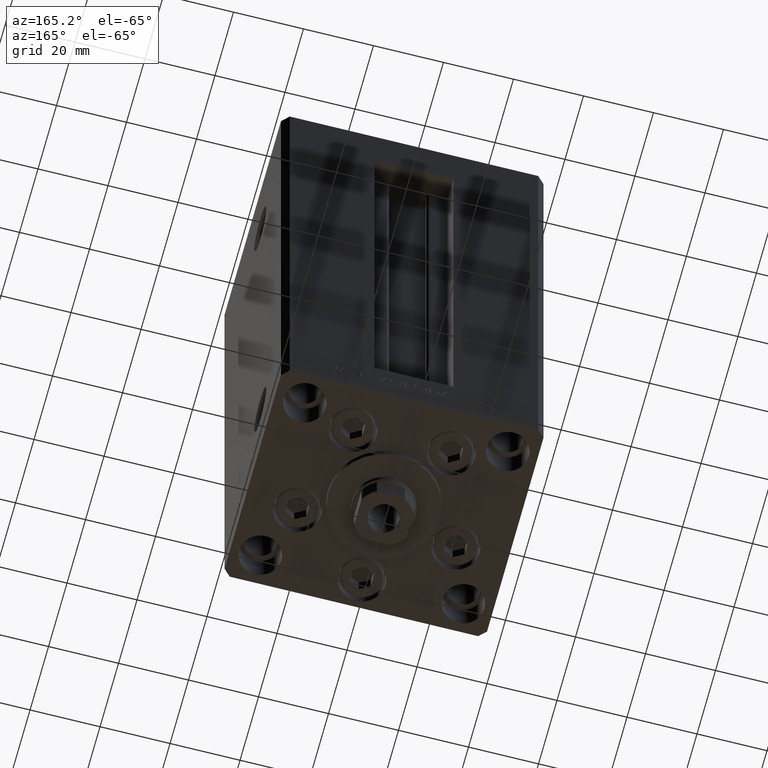
[diagram: clean part render]
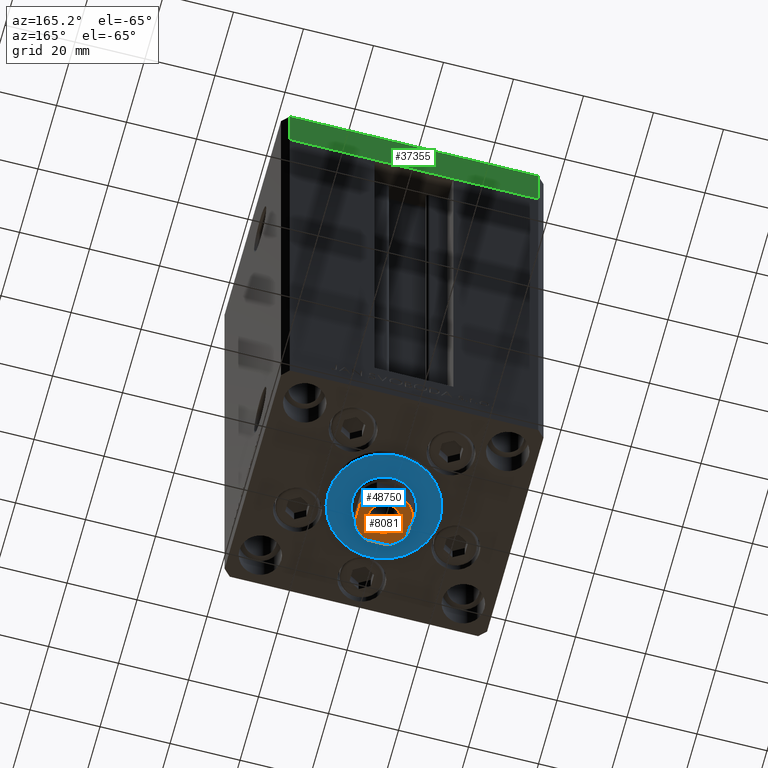
[diagram: same view with three faces highlighted in distinct colors, each labeled with its STEP entity id]
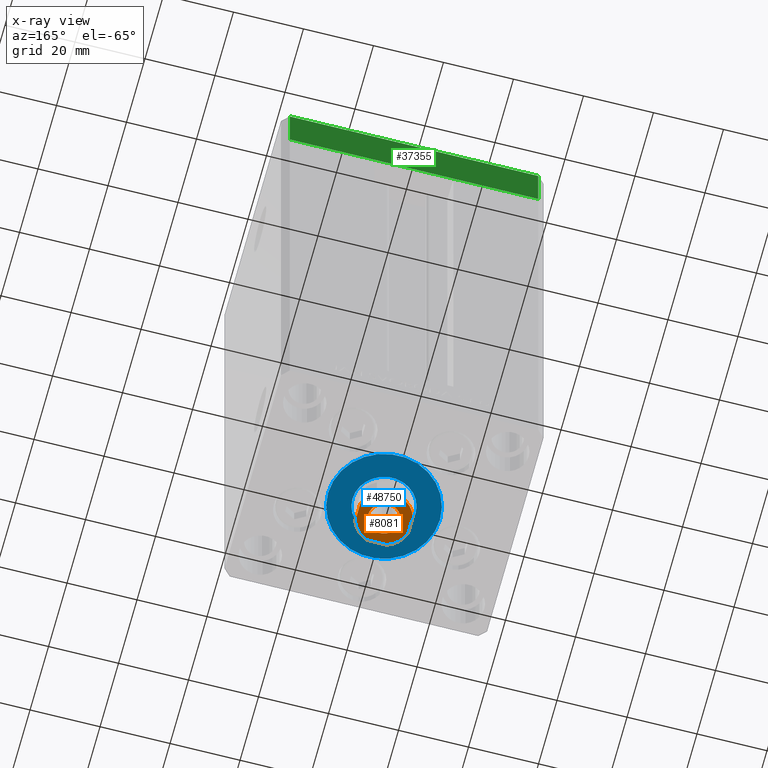
[diagram: x-ray of the same camera — body ghosted, the three highlighted faces saturated]
A machine part, auxiliary view with three faces highlighted in distinct colors.
The next image is the same camera in x-ray (body ghosted, the three faces saturated) — at least one of them is partly hidden behind the body in this view.
Their STEP definitions:

[orange] entity #8081 — the highlighted planar face has unit normal (0, 0, -1).
#101 = CARTESIAN_POINT ( 'NONE',  ( -2.783882181415013868, 7.499999999999999112, 148.0000000000000284 ) ) ;
#652 = AXIS2_PLACEMENT_3D ( 'NONE', #18741, #30198, #26210 ) ;
#1650 = CIRCLE ( 'NONE', #35079, 8.000000000000000000 ) ;
#1768 = ORIENTED_EDGE ( 'NONE', *, *, #26527, .T. ) ;
#2228 = DIRECTION ( 'NONE',  ( 1.000000000000000000, 0.000000000000000000, 0.000000000000000000 ) ) ;
#2620 = VECTOR ( 'NONE', #23228, 1000.000000000000000 ) ;
#2804 = EDGE_CURVE ( 'NONE', #14791, #14892, #26207, .T. ) ;
#3019 = EDGE_CURVE ( 'NONE', #19137, #20730, #42943, .T. ) ;
#3260 = AXIS2_PLACEMENT_3D ( 'NONE', #25045, #18048, #33242 ) ;
#3546 = DIRECTION ( 'NONE',  ( -0.000000000000000000, 0.000000000000000000, 1.000000000000000000 ) ) ;
#3634 = VECTOR ( 'NONE', #46750, 1000.000000000000000 ) ;
#4140 = DIRECTION ( 'NONE',  ( 1.000000000000000000, 0.000000000000000000, 0.000000000000000000 ) ) ;
#4395 = EDGE_CURVE ( 'NONE', #45380, #17062, #1650, .T. ) ;
#4961 = EDGE_CURVE ( 'NONE', #33076, #11491, #46208, .T. ) ;
#6999 = DIRECTION ( 'NONE',  ( -1.000000000000000000, -5.782411586589357392E-17, -0.000000000000000000 ) ) ;
#8081 = ADVANCED_FACE ( 'NONE', ( #22963, #29961 ), #11016, .T. ) ;
#9358 = EDGE_LOOP ( 'NONE', ( #38093, #20385 ) ) ;
#9422 = CARTESIAN_POINT ( 'NONE',  ( 2.783882181415008539, -7.500000000000000888, 148.0000000000000284 ) ) ;
#9601 = VECTOR ( 'NONE', #6999, 1000.000000000000000 ) ;
#10123 = CARTESIAN_POINT ( 'NONE',  ( 2.783882181415012980, 7.500000000000000000, 148.0000000000000284 ) ) ;
#10266 = DIRECTION ( 'NONE',  ( -0.000000000000000000, 0.000000000000000000, 1.000000000000000000 ) ) ;
#11016 = PLANE ( 'NONE',  #652 ) ;
#11068 = VERTEX_POINT ( 'NONE', #10123 ) ;
#11491 = VERTEX_POINT ( 'NONE', #24460 ) ;
#11942 = AXIS2_PLACEMENT_3D ( 'NONE', #32362, #43578, #2228 ) ;
#13735 = EDGE_CURVE ( 'NONE', #20730, #19137, #40619, .T. ) ;
#14499 = CARTESIAN_POINT ( 'NONE',  ( 0.000000000000000000, 0.000000000000000000, 148.0000000000000284 ) ) ;
#14791 = VERTEX_POINT ( 'NONE', #18513 ) ;
#14892 = VERTEX_POINT ( 'NONE', #45063 ) ;
#16779 = CIRCLE ( 'NONE', #35110, 8.000000000000000000 ) ;
#17042 = DIRECTION ( 'NONE',  ( 5.782411586589357392E-17, -1.000000000000000000, 0.000000000000000000 ) ) ;
#17062 = VERTEX_POINT ( 'NONE', #46999 ) ;
#18048 = DIRECTION ( 'NONE',  ( -0.000000000000000000, 0.000000000000000000, 1.000000000000000000 ) ) ;
#18050 = ORIENTED_EDGE ( 'NONE', *, *, #2804, .T. ) ;
#18513 = CARTESIAN_POINT ( 'NONE',  ( -7.499999999999998224, -2.783882181415016088, 148.0000000000000284 ) ) ;
#18741 = CARTESIAN_POINT ( 'NONE',  ( 0.000000000000000000, 0.000000000000000000, 148.0000000000000284 ) ) ;
#19137 = VERTEX_POINT ( 'NONE', #20846 ) ;
#19458 = EDGE_CURVE ( 'NONE', #27608, #11068, #16779, .T. ) ;
#19729 = LINE ( 'NONE', #30206, #2620 ) ;
#20385 = ORIENTED_EDGE ( 'NONE', *, *, #13735, .T. ) ;
#20730 = VERTEX_POINT ( 'NONE', #43075 ) ;
#20846 = CARTESIAN_POINT ( 'NONE',  ( 4.550000000000012257, 0.000000000000000000, 148.0000000000000284 ) ) ;
#21359 = ORIENTED_EDGE ( 'NONE', *, *, #4961, .T. ) ;
#21439 = AXIS2_PLACEMENT_3D ( 'NONE', #27528, #42735, #4140 ) ;
#22963 = FACE_BOUND ( 'NONE', #9358, .T. ) ;
#23228 = DIRECTION ( 'NONE',  ( 1.156482317317871478E-16, 1.000000000000000000, -0.000000000000000000 ) ) ;
#23807 = LINE ( 'NONE', #31543, #3634 ) ;
#24460 = CARTESIAN_POINT ( 'NONE',  ( 7.500000000000000888, -2.783882181415009427, 148.0000000000000284 ) ) ;
#25045 = CARTESIAN_POINT ( 'NONE',  ( 0.000000000000000000, 0.000000000000000000, 148.0000000000000284 ) ) ;
#25219 = DIRECTION ( 'NONE',  ( 1.000000000000000000, 0.000000000000000000, 0.000000000000000000 ) ) ;
#25433 = CARTESIAN_POINT ( 'NONE',  ( -7.499999999999998224, 7.499999999999999112, 148.0000000000000284 ) ) ;
#26074 = ORIENTED_EDGE ( 'NONE', *, *, #19458, .T. ) ;
#26207 = CIRCLE ( 'NONE', #33388, 8.000000000000000000 ) ;
#26210 = DIRECTION ( 'NONE',  ( 1.000000000000000000, 0.000000000000000000, 0.000000000000000000 ) ) ;
#26527 = EDGE_CURVE ( 'NONE', #17062, #14791, #28252, .T. ) ;
#26555 = VECTOR ( 'NONE', #17042, 1000.000000000000000 ) ;
#27215 = CARTESIAN_POINT ( 'NONE',  ( 7.500000000000000888, 2.783882181415007206, 148.0000000000000284 ) ) ;
#27367 = EDGE_LOOP ( 'NONE', ( #1768, #18050, #42445, #21359, #32394, #26074, #36186, #44645 ) ) ;
#27528 = CARTESIAN_POINT ( 'NONE',  ( 0.000000000000000000, 0.000000000000000000, 148.0000000000000284 ) ) ;
#27608 = VERTEX_POINT ( 'NONE', #27215 ) ;
#28252 = LINE ( 'NONE', #32730, #26555 ) ;
#29961 = FACE_OUTER_BOUND ( 'NONE', #27367, .T. ) ;
#30198 = DIRECTION ( 'NONE',  ( -0.000000000000000000, 0.000000000000000000, 1.000000000000000000 ) ) ;
#30206 = CARTESIAN_POINT ( 'NONE',  ( 7.500000000000001776, 7.500000000000000000, 148.0000000000000284 ) ) ;
#31543 = CARTESIAN_POINT ( 'NONE',  ( -7.499999999999997335, -7.500000000000000888, 148.0000000000000284 ) ) ;
#32362 = CARTESIAN_POINT ( 'NONE',  ( 0.000000000000000000, 0.000000000000000000, 148.0000000000000284 ) ) ;
#32394 = ORIENTED_EDGE ( 'NONE', *, *, #43486, .T. ) ;
#32730 = CARTESIAN_POINT ( 'NONE',  ( -7.499999999999998224, 7.499999999999999112, 148.0000000000000284 ) ) ;
#33076 = VERTEX_POINT ( 'NONE', #9422 ) ;
#33173 = CARTESIAN_POINT ( 'NONE',  ( 0.000000000000000000, 0.000000000000000000, 148.0000000000000284 ) ) ;
#33242 = DIRECTION ( 'NONE',  ( 1.000000000000000000, 0.000000000000000000, 0.000000000000000000 ) ) ;
#33388 = AXIS2_PLACEMENT_3D ( 'NONE', #39050, #39298, #42306 ) ;
#33417 = EDGE_CURVE ( 'NONE', #14892, #33076, #23807, .T. ) ;
#35079 = AXIS2_PLACEMENT_3D ( 'NONE', #33173, #3546, #48395 ) ;
#35110 = AXIS2_PLACEMENT_3D ( 'NONE', #14499, #10266, #25219 ) ;
#36186 = ORIENTED_EDGE ( 'NONE', *, *, #39452, .T. ) ;
#38093 = ORIENTED_EDGE ( 'NONE', *, *, #3019, .T. ) ;
#39050 = CARTESIAN_POINT ( 'NONE',  ( 0.000000000000000000, 0.000000000000000000, 148.0000000000000284 ) ) ;
#39298 = DIRECTION ( 'NONE',  ( -0.000000000000000000, 0.000000000000000000, 1.000000000000000000 ) ) ;
#39452 = EDGE_CURVE ( 'NONE', #11068, #45380, #45113, .T. ) ;
#40619 = CIRCLE ( 'NONE', #11942, 4.550000000000012257 ) ;
#42306 = DIRECTION ( 'NONE',  ( 1.000000000000000000, 0.000000000000000000, 0.000000000000000000 ) ) ;
#42445 = ORIENTED_EDGE ( 'NONE', *, *, #33417, .T. ) ;
#42735 = DIRECTION ( 'NONE',  ( 0.000000000000000000, -0.000000000000000000, -1.000000000000000000 ) ) ;
#42943 = CIRCLE ( 'NONE', #21439, 4.550000000000012257 ) ;
#43075 = CARTESIAN_POINT ( 'NONE',  ( -4.550000000000012257, 5.572142936120472118E-16, 148.0000000000000284 ) ) ;
#43486 = EDGE_CURVE ( 'NONE', #11491, #27608, #19729, .T. ) ;
#43578 = DIRECTION ( 'NONE',  ( 0.000000000000000000, -0.000000000000000000, -1.000000000000000000 ) ) ;
#44645 = ORIENTED_EDGE ( 'NONE', *, *, #4395, .T. ) ;
#45063 = CARTESIAN_POINT ( 'NONE',  ( -2.783882181415010315, -7.500000000000000888, 148.0000000000000284 ) ) ;
#45113 = LINE ( 'NONE', #25433, #9601 ) ;
#45380 = VERTEX_POINT ( 'NONE', #101 ) ;
#46208 = CIRCLE ( 'NONE', #3260, 8.000000000000000000 ) ;
#46750 = DIRECTION ( 'NONE',  ( 1.000000000000000000, 5.782411586589358625E-17, 0.000000000000000000 ) ) ;
#46999 = CARTESIAN_POINT ( 'NONE',  ( -7.499999999999998224, 2.783882181415015644, 148.0000000000000284 ) ) ;
#48395 = DIRECTION ( 'NONE',  ( 1.000000000000000000, 0.000000000000000000, 0.000000000000000000 ) ) ;

[blue] entity #48750 — the highlighted planar face has unit normal (0, 0, -1).
#213 = AXIS2_PLACEMENT_3D ( 'NONE', #880, #46475, #12325 ) ;
#880 = CARTESIAN_POINT ( 'NONE',  ( 0.000000000000000000, -6.938893903907228378E-15, 2.000000000000000000 ) ) ;
#1046 = DIRECTION ( 'NONE',  ( 1.000000000000000000, 0.000000000000000000, 0.000000000000000000 ) ) ;
#1379 = EDGE_CURVE ( 'NONE', #15274, #42868, #30984, .T. ) ;
#1639 = AXIS2_PLACEMENT_3D ( 'NONE', #4072, #8531, #34454 ) ;
#3994 = AXIS2_PLACEMENT_3D ( 'NONE', #4785, #19964, #1046 ) ;
#4072 = CARTESIAN_POINT ( 'NONE',  ( 0.000000000000000000, -6.938893903907228378E-15, 2.000000000000000000 ) ) ;
#4426 = AXIS2_PLACEMENT_3D ( 'NONE', #30074, #33079, #22097 ) ;
#4625 = FACE_OUTER_BOUND ( 'NONE', #28145, .T. ) ;
#4785 = CARTESIAN_POINT ( 'NONE',  ( 0.000000000000000000, -6.938893903907228378E-15, 2.000000000000000000 ) ) ;
#4848 = CIRCLE ( 'NONE', #1639, 9.000000000000000000 ) ;
#5310 = VERTEX_POINT ( 'NONE', #19764 ) ;
#7272 = EDGE_LOOP ( 'NONE', ( #38527, #48330 ) ) ;
#8531 = DIRECTION ( 'NONE',  ( 0.000000000000000000, 0.000000000000000000, 1.000000000000000000 ) ) ;
#11791 = ORIENTED_EDGE ( 'NONE', *, *, #16898, .T. ) ;
#11875 = CARTESIAN_POINT ( 'NONE',  ( 9.000000000000000000, -6.938893903907228378E-15, 2.000000000000000000 ) ) ;
#12325 = DIRECTION ( 'NONE',  ( 1.000000000000000000, 0.000000000000000000, -0.000000000000000000 ) ) ;
#15274 = VERTEX_POINT ( 'NONE', #23834 ) ;
#16214 = CARTESIAN_POINT ( 'NONE',  ( -16.00000000000000355, -6.938893903907228378E-15, 2.000000000000000000 ) ) ;
#16898 = EDGE_CURVE ( 'NONE', #5310, #36897, #19912, .T. ) ;
#19764 = CARTESIAN_POINT ( 'NONE',  ( 16.00000000000000355, -4.979459025271462852E-15, 2.000000000000000000 ) ) ;
#19912 = CIRCLE ( 'NONE', #3994, 16.00000000000000355 ) ;
#19964 = DIRECTION ( 'NONE',  ( 0.000000000000000000, 0.000000000000000000, 1.000000000000000000 ) ) ;
#22097 = DIRECTION ( 'NONE',  ( 1.000000000000000000, 0.000000000000000000, 0.000000000000000000 ) ) ;
#23042 = PLANE ( 'NONE',  #213 ) ;
#23530 = CARTESIAN_POINT ( 'NONE',  ( 0.000000000000000000, -6.938893903907228378E-15, 2.000000000000000000 ) ) ;
#23834 = CARTESIAN_POINT ( 'NONE',  ( -9.000000000000000000, -5.836711784674610467E-15, 2.000000000000000000 ) ) ;
#27267 = DIRECTION ( 'NONE',  ( 0.000000000000000000, 0.000000000000000000, 1.000000000000000000 ) ) ;
#27769 = AXIS2_PLACEMENT_3D ( 'NONE', #23530, #27267, #45727 ) ;
#28145 = EDGE_LOOP ( 'NONE', ( #40597, #11791 ) ) ;
#30074 = CARTESIAN_POINT ( 'NONE',  ( 0.000000000000000000, -6.938893903907228378E-15, 2.000000000000000000 ) ) ;
#30128 = EDGE_CURVE ( 'NONE', #36897, #5310, #35426, .T. ) ;
#30984 = CIRCLE ( 'NONE', #27769, 9.000000000000000000 ) ;
#33079 = DIRECTION ( 'NONE',  ( 0.000000000000000000, 0.000000000000000000, 1.000000000000000000 ) ) ;
#34454 = DIRECTION ( 'NONE',  ( 1.000000000000000000, 0.000000000000000000, 0.000000000000000000 ) ) ;
#35426 = CIRCLE ( 'NONE', #4426, 16.00000000000000355 ) ;
#36897 = VERTEX_POINT ( 'NONE', #16214 ) ;
#38527 = ORIENTED_EDGE ( 'NONE', *, *, #39264, .F. ) ;
#38745 = FACE_BOUND ( 'NONE', #7272, .T. ) ;
#39264 = EDGE_CURVE ( 'NONE', #42868, #15274, #4848, .T. ) ;
#40597 = ORIENTED_EDGE ( 'NONE', *, *, #30128, .T. ) ;
#42868 = VERTEX_POINT ( 'NONE', #11875 ) ;
#45727 = DIRECTION ( 'NONE',  ( 1.000000000000000000, 0.000000000000000000, 0.000000000000000000 ) ) ;
#46475 = DIRECTION ( 'NONE',  ( 0.000000000000000000, 0.000000000000000000, 1.000000000000000000 ) ) ;
#48330 = ORIENTED_EDGE ( 'NONE', *, *, #1379, .F. ) ;
#48750 = ADVANCED_FACE ( 'NONE', ( #38745, #4625 ), #23042, .T. ) ;

[green] entity #37355 — the highlighted planar face has unit normal (-0, 1, 0).
#162 = DIRECTION ( 'NONE',  ( -1.954618001100629052E-16, 1.000000000000000000, 0.000000000000000000 ) ) ;
#1271 = CARTESIAN_POINT ( 'NONE',  ( 35.49999999999992184, 32.50000000000000711, -15.00000000000000000 ) ) ;
#3288 = CARTESIAN_POINT ( 'NONE',  ( 35.49999999999992184, 32.50000000000000711, 0.000000000000000000 ) ) ;
#3291 = ORIENTED_EDGE ( 'NONE', *, *, #8594, .T. ) ;
#4526 = LINE ( 'NONE', #1271, #48428 ) ;
#5589 = CARTESIAN_POINT ( 'NONE',  ( -35.50000000000002842, 32.49999999999999289, 0.000000000000000000 ) ) ;
#6485 = VERTEX_POINT ( 'NONE', #21694 ) ;
#8249 = ORIENTED_EDGE ( 'NONE', *, *, #45763, .F. ) ;
#8594 = EDGE_CURVE ( 'NONE', #45348, #31607, #23908, .T. ) ;
#9448 = EDGE_CURVE ( 'NONE', #43569, #45348, #4526, .T. ) ;
#9644 = VECTOR ( 'NONE', #22932, 1000.000000000000000 ) ;
#16029 = EDGE_CURVE ( 'NONE', #6485, #31607, #41883, .T. ) ;
#16219 = ORIENTED_EDGE ( 'NONE', *, *, #16029, .F. ) ;
#19696 = DIRECTION ( 'NONE',  ( -1.000000000000000000, -1.954618001100629052E-16, 0.000000000000000000 ) ) ;
#21694 = CARTESIAN_POINT ( 'NONE',  ( 35.49999999999992184, 32.50000000000000711, 0.000000000000000000 ) ) ;
#22323 = DIRECTION ( 'NONE',  ( -1.000000000000000000, -1.954618001100629052E-16, 0.000000000000000000 ) ) ;
#22932 = DIRECTION ( 'NONE',  ( -1.000000000000000000, -1.954618001100629052E-16, 0.000000000000000000 ) ) ;
#23908 = LINE ( 'NONE', #27891, #30876 ) ;
#24411 = DIRECTION ( 'NONE',  ( 0.000000000000000000, 0.000000000000000000, 1.000000000000000000 ) ) ;
#26312 = PLANE ( 'NONE',  #32606 ) ;
#27891 = CARTESIAN_POINT ( 'NONE',  ( -35.50000000000002842, 32.49999999999999289, -15.00000000000000000 ) ) ;
#29446 = CARTESIAN_POINT ( 'NONE',  ( 35.49999999999992184, 32.50000000000000711, -15.00000000000000000 ) ) ;
#30876 = VECTOR ( 'NONE', #24411, 1000.000000000000000 ) ;
#31607 = VERTEX_POINT ( 'NONE', #5589 ) ;
#31890 = EDGE_LOOP ( 'NONE', ( #16219, #8249, #35025, #3291 ) ) ;
#32606 = AXIS2_PLACEMENT_3D ( 'NONE', #37536, #162, #22323 ) ;
#34287 = FACE_OUTER_BOUND ( 'NONE', #31890, .T. ) ;
#35025 = ORIENTED_EDGE ( 'NONE', *, *, #9448, .T. ) ;
#36011 = CARTESIAN_POINT ( 'NONE',  ( -35.50000000000002842, 32.49999999999999289, -15.00000000000000000 ) ) ;
#37355 = ADVANCED_FACE ( 'NONE', ( #34287 ), #26312, .T. ) ;
#37536 = CARTESIAN_POINT ( 'NONE',  ( 35.49999999999992184, 32.50000000000000711, -15.00000000000000000 ) ) ;
#38913 = CARTESIAN_POINT ( 'NONE',  ( 35.49999999999992184, 32.50000000000000711, -15.00000000000000000 ) ) ;
#39943 = VECTOR ( 'NONE', #45139, 1000.000000000000000 ) ;
#41883 = LINE ( 'NONE', #3288, #9644 ) ;
#43569 = VERTEX_POINT ( 'NONE', #38913 ) ;
#45139 = DIRECTION ( 'NONE',  ( 0.000000000000000000, 0.000000000000000000, 1.000000000000000000 ) ) ;
#45348 = VERTEX_POINT ( 'NONE', #36011 ) ;
#45763 = EDGE_CURVE ( 'NONE', #43569, #6485, #48399, .T. ) ;
#48399 = LINE ( 'NONE', #29446, #39943 ) ;
#48428 = VECTOR ( 'NONE', #19696, 1000.000000000000000 ) ;